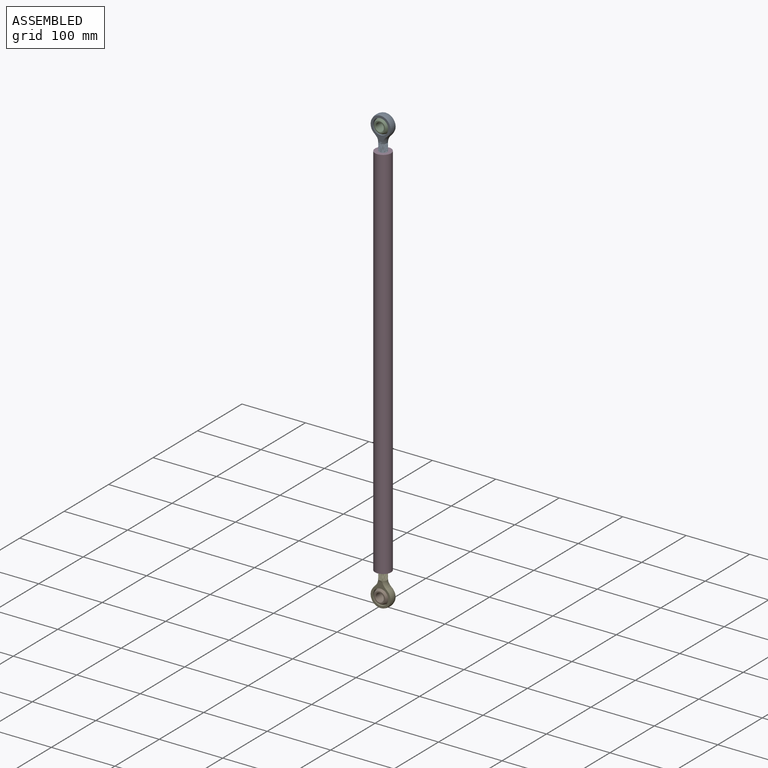
[diagram: assembled view]
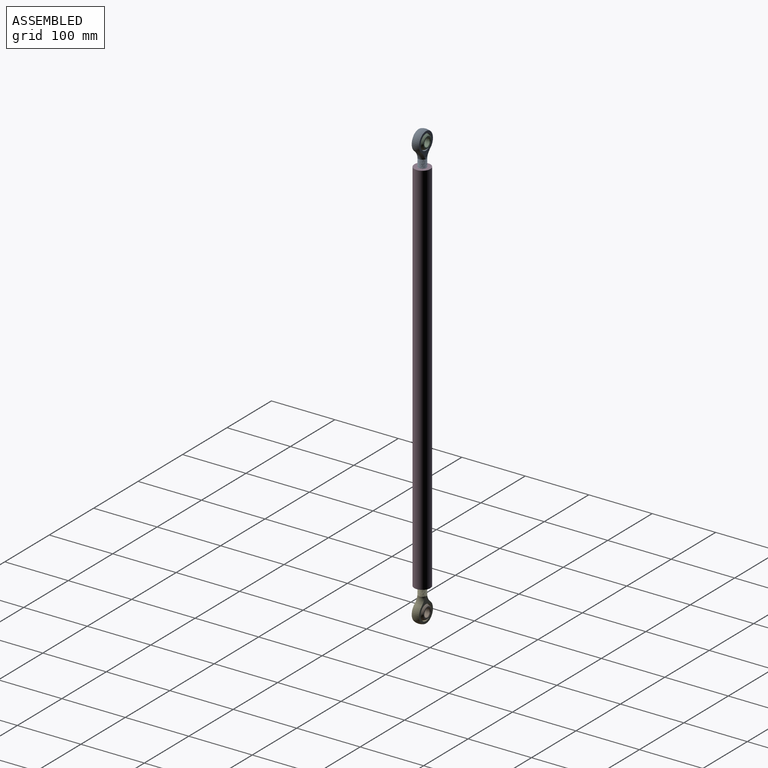
[diagram: assembled view, second angle]
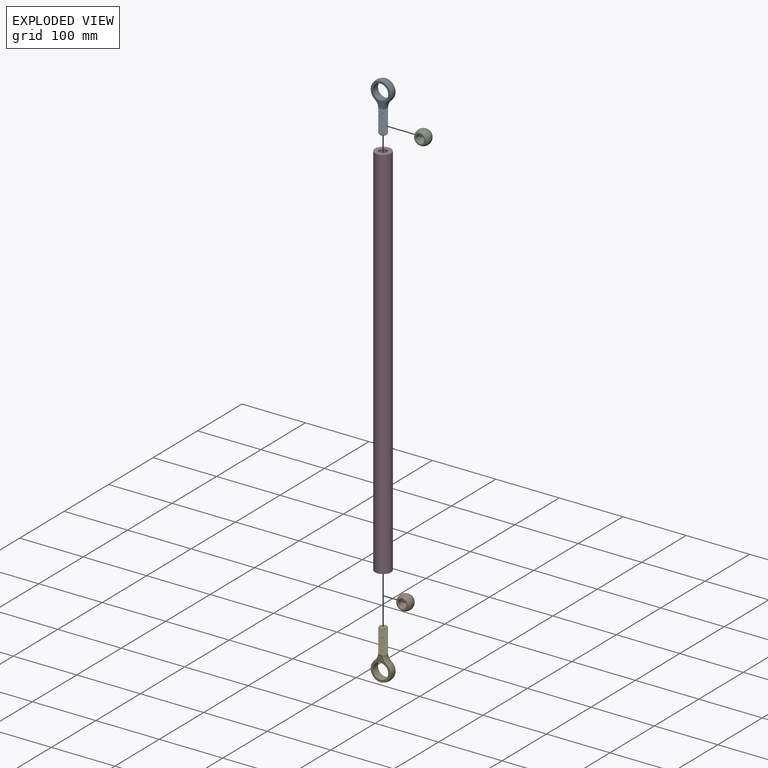
[diagram: exploded view]
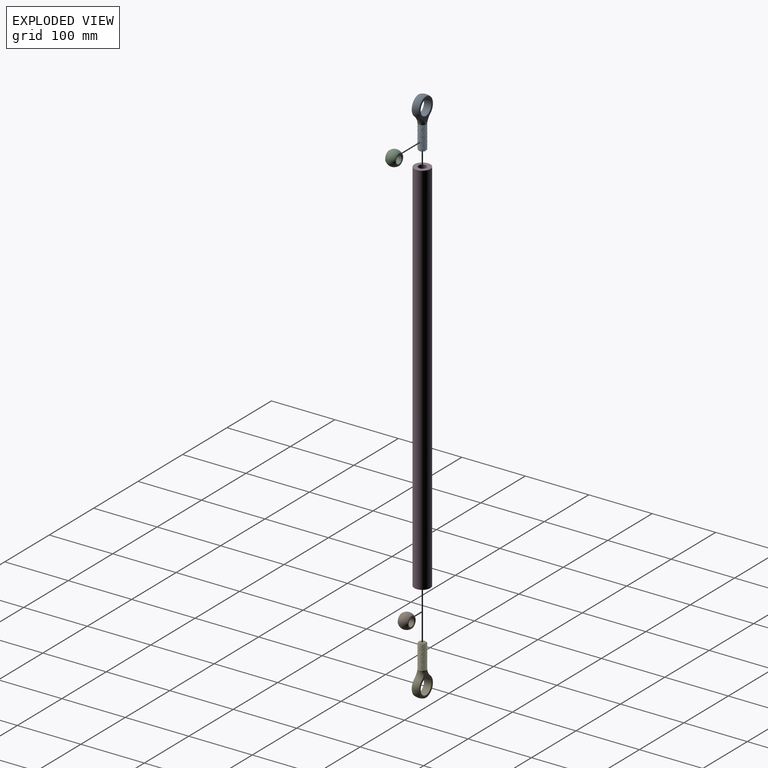
[diagram: exploded view, second angle]
ASSEMBLY  parts=5 mates=2
PART A: 16 faces, bbox 49.1x49.1x80.1 mm
  f0: cylinder r=12.03mm len=24.05mm, axis (0,-1,0), area 869.6mm2, adj f12,f14
  f1: sphere r=16.67mm, area 944.4mm2, adj f2,f5,f12,f14
  f2: torus R=22.32mm, axis (0,0,-1), area 180.4mm2, adj f1,f3,f11,f12,f13,f14,f15
  f3: cylinder r=6.35mm len=36.83mm, axis (0,0,1), area 183.7mm2, adj f2,f4,f7,f10
  f4: cone r=6.35mm half-angle=45deg, axis (0,0,1), area 42.4mm2, adj f3,f6,f7,f8,f9,f10
  f5: torus R=22.32mm, axis (0,0,-1), area 180.4mm2, adj f1,f11,f12,f13,f14,f15
  f6: plane 10.16x10.16mm, normal (0,0,-1), area 81.1mm2, adj f4
  f7: bspline ~39.05x12.7mm, area 1047.9mm2, adj f3,f4,f9,f11
  f8: bspline ~11.29x10.76mm, area 7.1mm2, adj f4
  f9: cylinder r=5.53mm len=37.66mm, axis (0,0,1), area 165.1mm2, adj f4,f7,f10,f11
  f10: bspline ~38.42x12.7mm, area 1045.6mm2, adj f3,f4,f9,f11
  f11: plane 13.2x13.2mm, normal (0,0,-1), area 15.6mm2, adj f2,f5,f7,f9,f10
  f12: plane 37.68x31.81mm, normal (0,-1,0), area 376.1mm2, adj f0,f1,f2,f5,f13
  f13: plane 6.9x3.09mm, normal (0,-0.97,0.25), area 9.3mm2, adj f2,f5,f12
  f14: plane 37.68x31.81mm, normal (0,1,0), area 376.1mm2, adj f0,f1,f2,f5,f15
  f15: plane 6.9x3.09mm, normal (0,0.97,0.25), area 9.3mm2, adj f2,f5,f14
PART B: 6 faces, bbox 23.8x15.9x23.8 mm
  f0: cone r=6.35mm half-angle=45deg, axis (0,-1,0), area 37.6mm2, adj f2,f4
  f1: cone r=6.99mm half-angle=45deg, axis (0,1,0), area 37.6mm2, adj f2,f5
  f2: cylinder r=6.35mm len=14.61mm, axis (0,-1,0), area 582.7mm2, adj f0,f1
  f3: sphere r=11.91mm, area 1187.6mm2, adj f4,f5
  f4: plane 17.75x17.75mm, normal (0,-1,0), area 94.1mm2, adj f0,f3
  f5: plane 17.75x17.75mm, normal (0,1,0), area 94.1mm2, adj f1,f3
PART C: same geometry as B
PART D: 4 faces, bbox 25.4x596.9x25.4 mm
  f0: cylinder r=6.35mm len=596.9mm, axis (0,1,0), area 23815.3mm2, adj f2,f3
  f1: cylinder r=12.7mm len=596.9mm, axis (0,1,0), area 47630.5mm2, adj f2,f3
  f2: plane 25.4x25.4mm, normal (0,-1,0), area 380mm2, adj f0,f1
  f3: plane 25.4x25.4mm, normal (0,1,0), area 380mm2, adj f0,f1
PART E: same geometry as A
PLACE A t=(848.33,191.86,-654.94)mm
PLACE B rot(axis=(1,0,0),180deg) t=(848.33,191.86,-1277.24)mm
PLACE C t=(848.33,191.86,-654.94)mm
PLACE D rot(axis=(1,0,0),90deg) t=(848.33,191.86,-966.09)mm
PLACE E rot(axis=(1,0,0),180deg) t=(848.33,191.86,-1277.24)mm
MATE fastened D.f0 <-> E.f9  axis (0,0,1) through (848.33,191.86,-1264.54)mm
MATE fastened D.f0 <-> A.f9  axis (0,0,1) through (848.33,191.86,-667.64)mm
